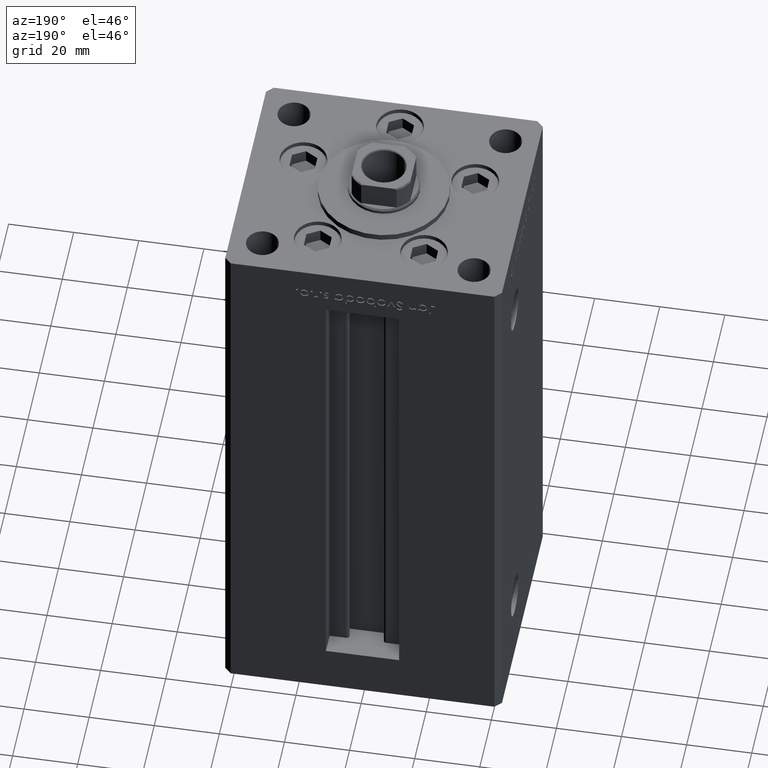
[diagram: clean part render]
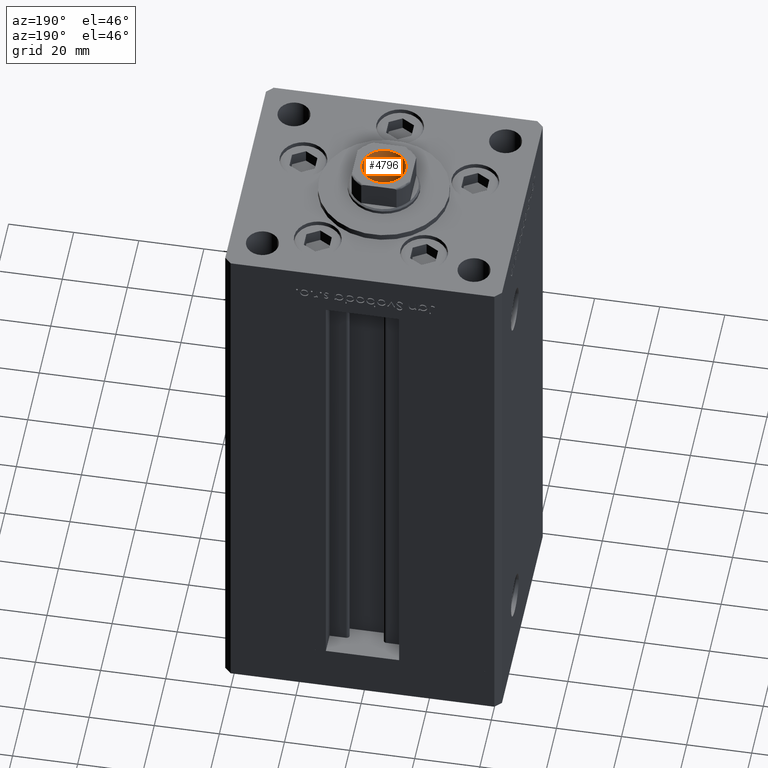
[diagram: same view with one face highlighted and labeled with its STEP entity id]
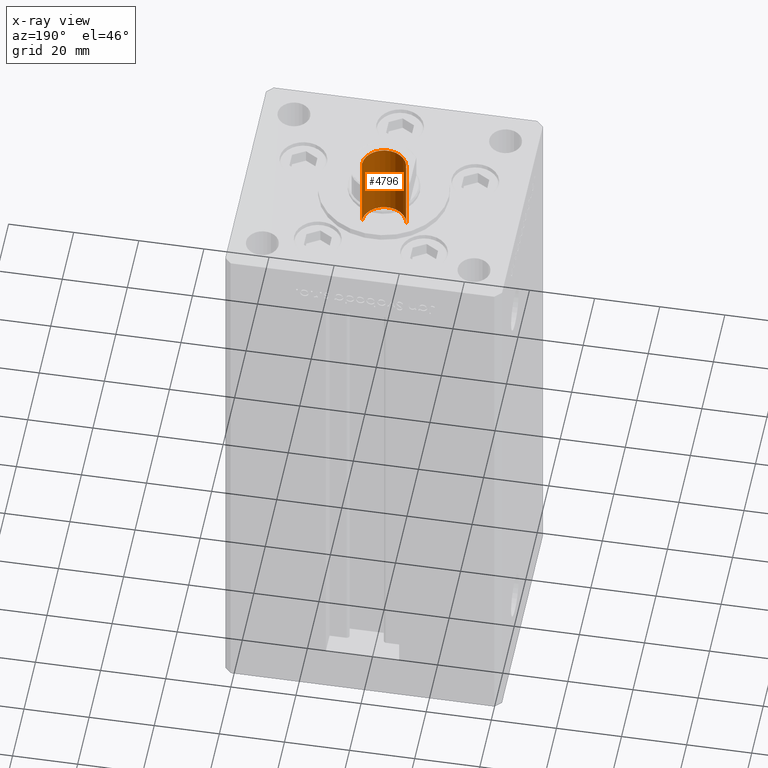
[diagram: x-ray of the same camera — body ghosted, the highlighted face saturated]
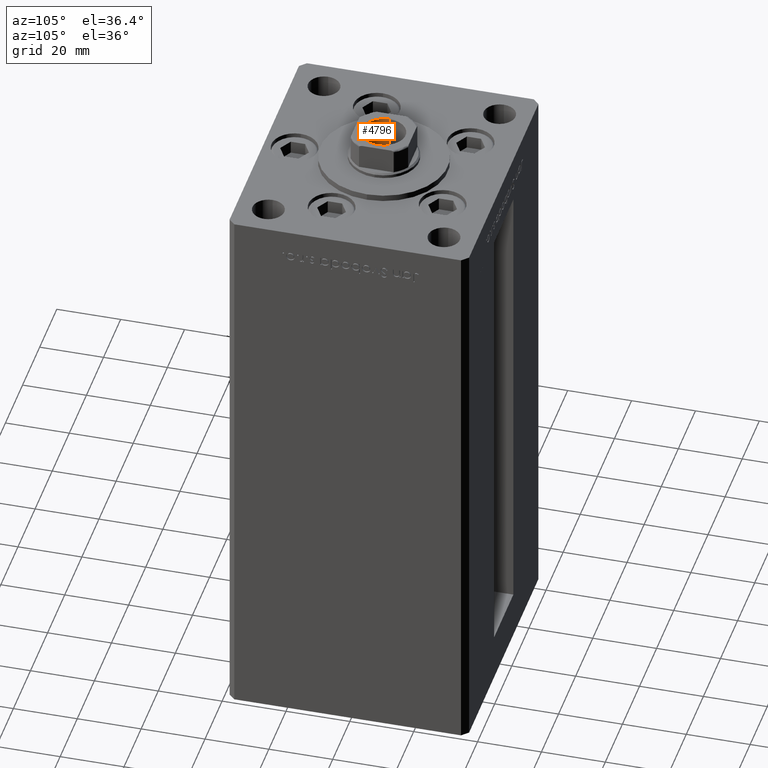
[diagram: same view with one face highlighted and labeled with its STEP entity id]
A machine part, auxiliary view. The second image highlights one B-rep face of the part: STEP entity #4796.
The next image is the same camera in x-ray: the body ghosted, the highlighted face saturated — about 0% of this face is hidden behind the body in this view.
A second angle (auxiliary view) of the same face is appended — the face is thin or edge-on in the first view.
In plain terms, the highlighted cylindrical surface (edge-blend (fillet) strip) has radius 6.75 mm, axis along (0, 0, 1).
Its self-contained STEP definition (entity closure, byte-faithful):
#123 = VECTOR ( 'NONE', #9862, 1000.000000000000000 ) ;
#1155 = DIRECTION ( 'NONE',  ( 0.000000000000000000, 0.000000000000000000, 1.000000000000000000 ) ) ;
#1202 = CARTESIAN_POINT ( 'NONE',  ( -6.749999999999995559, 8.266365894244628417E-16, 155.4499999999999886 ) ) ;
#4551 = VERTEX_POINT ( 'NONE', #1202 ) ;
#4796 = ADVANCED_FACE ( 'NONE', ( #32787 ), #8272, .F. ) ;
#6176 = ORIENTED_EDGE ( 'NONE', *, *, #6868, .T. ) ;
#6868 = EDGE_CURVE ( 'NONE', #4551, #27582, #40261, .T. ) ;
#7187 = DIRECTION ( 'NONE',  ( -0.000000000000000000, -0.000000000000000000, 1.000000000000000000 ) ) ;
#8272 = CYLINDRICAL_SURFACE ( 'NONE', #45323, 6.749999999999995559 ) ;
#9862 = DIRECTION ( 'NONE',  ( -0.000000000000000000, -0.000000000000000000, 1.000000000000000000 ) ) ;
#10190 = CARTESIAN_POINT ( 'NONE',  ( -6.749999999999993783, 8.266365894244626445E-16, 130.7500000000000000 ) ) ;
#10233 = CARTESIAN_POINT ( 'NONE',  ( 6.749999999999993783, 0.000000000000000000, 130.7500000000000000 ) ) ;
#13011 = DIRECTION ( 'NONE',  ( 1.000000000000000000, 0.000000000000000000, 0.000000000000000000 ) ) ;
#15390 = EDGE_CURVE ( 'NONE', #24912, #27582, #44981, .T. ) ;
#18793 = DIRECTION ( 'NONE',  ( 1.000000000000000000, 0.000000000000000000, 0.000000000000000000 ) ) ;
#20396 = CARTESIAN_POINT ( 'NONE',  ( 0.000000000000000000, 0.000000000000000000, 155.7500000000000000 ) ) ;
#20883 = VECTOR ( 'NONE', #46981, 1000.000000000000000 ) ;
#21341 = AXIS2_PLACEMENT_3D ( 'NONE', #30671, #7187, #18793 ) ;
#23318 = ORIENTED_EDGE ( 'NONE', *, *, #15390, .F. ) ;
#24912 = VERTEX_POINT ( 'NONE', #10233 ) ;
#25685 = CARTESIAN_POINT ( 'NONE',  ( 6.749999999999995559, 0.000000000000000000, 155.7500000000000000 ) ) ;
#26275 = EDGE_CURVE ( 'NONE', #39228, #24912, #32302, .T. ) ;
#27582 = VERTEX_POINT ( 'NONE', #50380 ) ;
#28388 = ORIENTED_EDGE ( 'NONE', *, *, #44767, .T. ) ;
#28468 = AXIS2_PLACEMENT_3D ( 'NONE', #49676, #1155, #40463 ) ;
#30671 = CARTESIAN_POINT ( 'NONE',  ( 0.000000000000000000, 0.000000000000000000, 130.7500000000000000 ) ) ;
#30874 = CARTESIAN_POINT ( 'NONE',  ( -6.749999999999995559, 8.266365894244628417E-16, 155.7500000000000000 ) ) ;
#32273 = DIRECTION ( 'NONE',  ( -0.000000000000000000, -0.000000000000000000, 1.000000000000000000 ) ) ;
#32302 = CIRCLE ( 'NONE', #21341, 6.749999999999993783 ) ;
#32787 = FACE_OUTER_BOUND ( 'NONE', #41364, .T. ) ;
#34311 = LINE ( 'NONE', #30874, #20883 ) ;
#39228 = VERTEX_POINT ( 'NONE', #10190 ) ;
#40261 = CIRCLE ( 'NONE', #28468, 6.749999999999995559 ) ;
#40463 = DIRECTION ( 'NONE',  ( 1.000000000000000000, 0.000000000000000000, 0.000000000000000000 ) ) ;
#41364 = EDGE_LOOP ( 'NONE', ( #51570, #28388, #6176, #23318 ) ) ;
#44767 = EDGE_CURVE ( 'NONE', #39228, #4551, #34311, .T. ) ;
#44981 = LINE ( 'NONE', #25685, #123 ) ;
#45323 = AXIS2_PLACEMENT_3D ( 'NONE', #20396, #32273, #13011 ) ;
#46981 = DIRECTION ( 'NONE',  ( -0.000000000000000000, -0.000000000000000000, 1.000000000000000000 ) ) ;
#49676 = CARTESIAN_POINT ( 'NONE',  ( 0.000000000000000000, 0.000000000000000000, 155.4499999999999886 ) ) ;
#50380 = CARTESIAN_POINT ( 'NONE',  ( 6.749999999999995559, 0.000000000000000000, 155.4499999999999886 ) ) ;
#51570 = ORIENTED_EDGE ( 'NONE', *, *, #26275, .F. ) ;